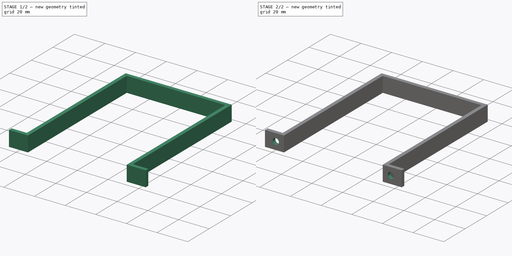
[diagram: build sequence overview — one tinted view per stage of 2, left to right]
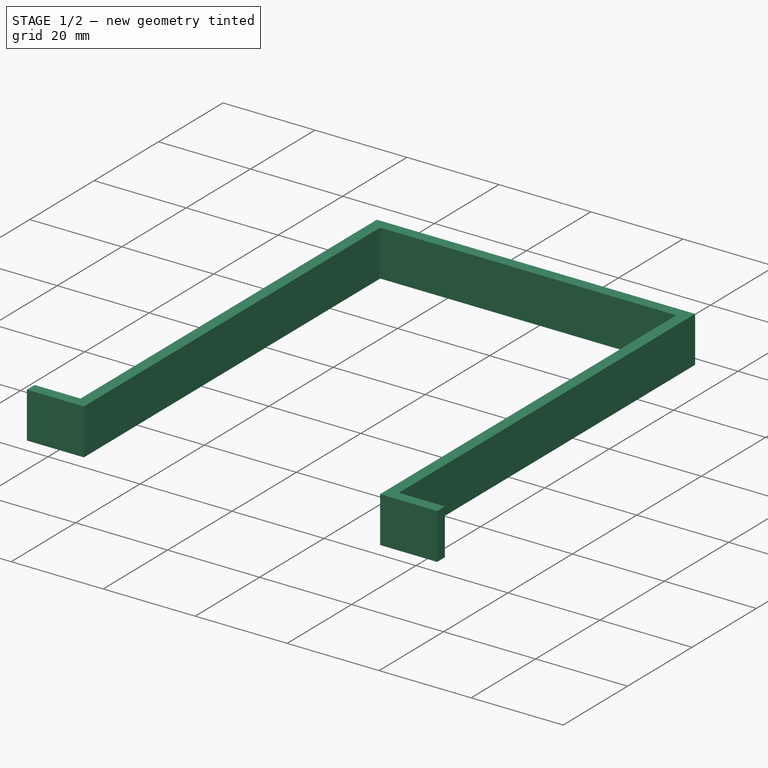
[diagram: stage 1 of 2 — iso view after this stage's code; geometry added in this stage tinted green]
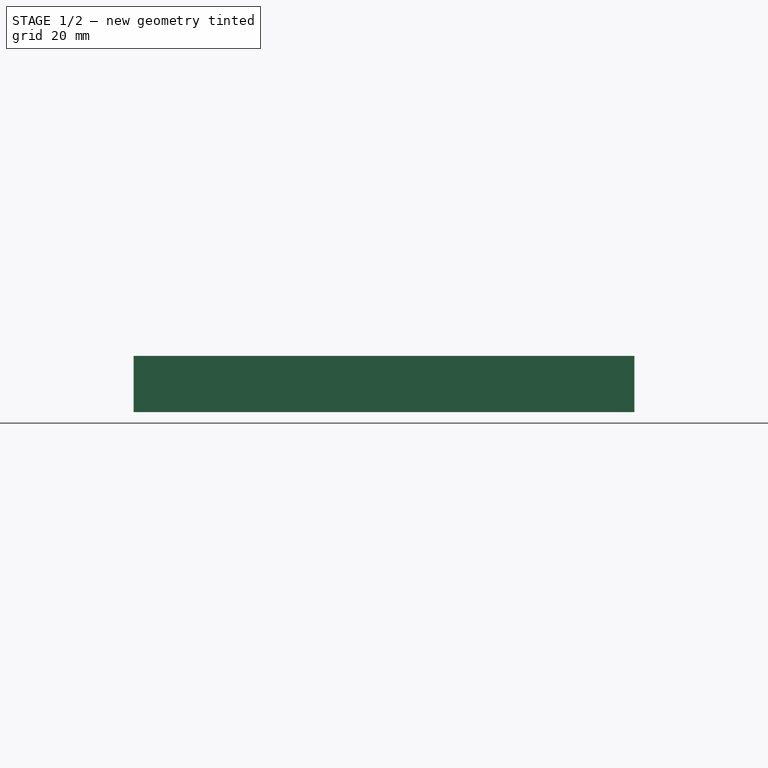
[diagram: stage 1 of 2 — front view after this stage's code; geometry added in this stage tinted green]
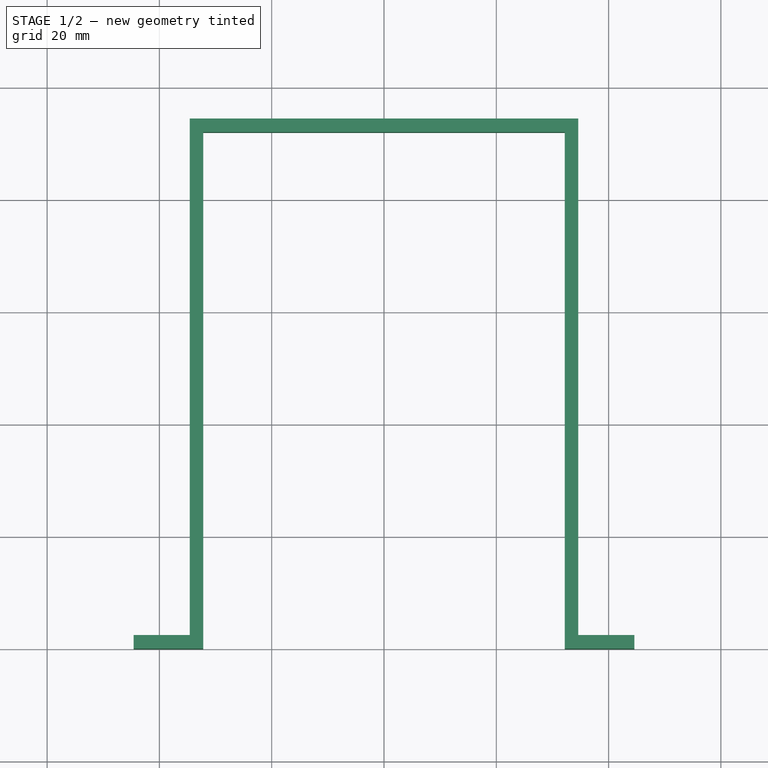
[diagram: stage 1 of 2 — top view after this stage's code; geometry added in this stage tinted green]
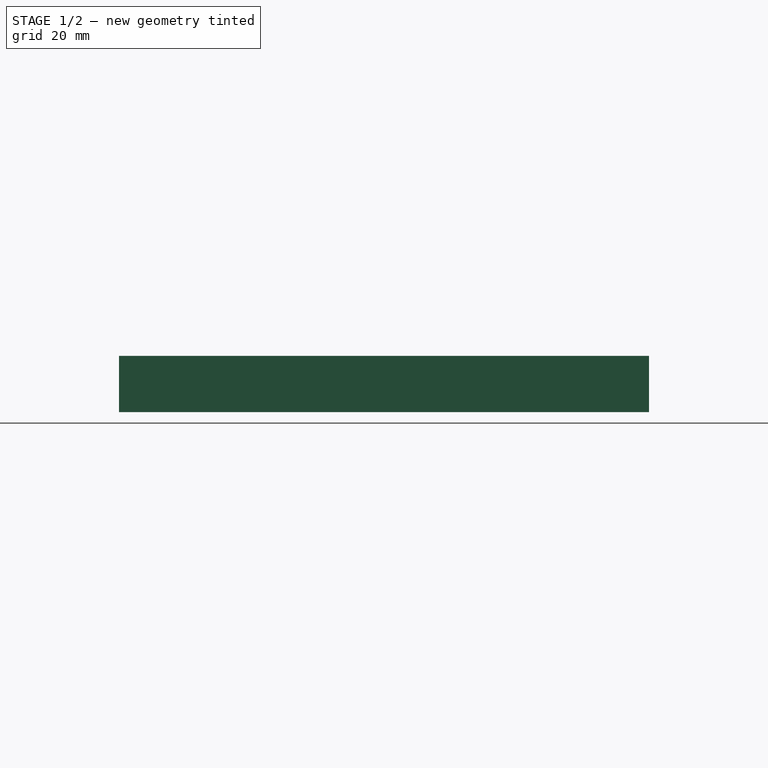
[diagram: stage 1 of 2 — right view after this stage's code; geometry added in this stage tinted green]
FCSTD DOCUMENT  (FreeCAD 0.22R38127 (Git))
Label: solar panel battery strap
License: All rights reserved
LicenseURL: http://en.wikipedia.org/wiki/All_rights_reserved
objects: Sketcher::SketchObject×2, PartDesign::Pad×1, PartDesign::Pocket×1, PartDesign::Body×1
note: 7 computed .brp shape members not serialized (recipe doc carries the construction recipe); baked Part::Feature solids carry a one-line shape summary decoded from their .brp

FEATURE [Sketcher::SketchObject] Sketch
  AttachmentSupport = -> [XY_Plane]
  FullyConstrained = true
  MapMode = 5
  sketch-geometry (12):
    g0: LineSegment StartX=34.6 StartY=94.4 StartZ=0 EndX=-34.6 EndY=94.4 EndZ=0
    g1: LineSegment StartX=-34.6 StartY=94.4 StartZ=0 EndX=-34.6 EndY=2.4 EndZ=0
    g2: LineSegment StartX=-34.6 StartY=2.4 StartZ=0 EndX=-44.6 EndY=2.4 EndZ=0
    g3: LineSegment StartX=-44.6 StartY=2.4 StartZ=0 EndX=-44.6 EndY=0 EndZ=0
    g4: LineSegment StartX=-44.6 StartY=0 StartZ=0 EndX=-32.2 EndY=0 EndZ=0
    g5: LineSegment StartX=-32.2 StartY=0 StartZ=0 EndX=-32.2 EndY=92 EndZ=0
    g6: LineSegment StartX=-32.2 StartY=92 StartZ=0 EndX=32.2 EndY=92 EndZ=0
    g7: LineSegment StartX=32.2 StartY=92 StartZ=0 EndX=32.2 EndY=0 EndZ=0
    g8: LineSegment StartX=32.2 StartY=0 StartZ=0 EndX=44.6 EndY=0 EndZ=0
    g9: LineSegment StartX=44.6 StartY=0 StartZ=0 EndX=44.6 EndY=2.4 EndZ=0
    g10: LineSegment StartX=44.6 StartY=2.4 StartZ=0 EndX=34.6 EndY=2.4 EndZ=0
    g11: LineSegment StartX=34.6 StartY=2.4 StartZ=0 EndX=34.6 EndY=94.4 EndZ=0
  constraints (30):
    c: Coincident(g0,g1)
    c: Coincident(g1,g2)
    c: Coincident(g2,g3)
    c: PointOnObject(g3,g-1)
    c: Coincident(g3,g4)
    c: PointOnObject(g4,g-1)
    c: Coincident(g4,g5)
    c: Coincident(g5,g6)
    c: Coincident(g6,g7)
    c: Coincident(g7,g8)
    c: Coincident(g8,g9)
    c: Coincident(g9,g10)
    c: Coincident(g10,g11)
    c: Coincident(g11,g0)
    c: Vertical(g1)
    c: Vertical(g5)
    c: Vertical(g3)
    c: Symmetric(g0,g0,g-2)
    c: Symmetric(g6,g5,g-2)
    c: Symmetric(g10,g1,g-2)
    c: Symmetric(g7,g4,g-2)
    c: Symmetric(g8,g3,g-2)
    c: Symmetric(g9,g2,g-2)
    c: Horizontal(g2)
    c: DistanceY(g5,g0) = 2.4
    c: DistanceX(g0,g5) = 2.4
    c: DistanceY(g3,g3) = 2.4
    c: DistanceX(g6,g6) = 64.4
    c: DistanceY(g5,g5) = 92
    c: DistanceX(g2,g2) = 10
FEATURE [PartDesign::Pad] Pad
  Direction = (0,0,1)
  Length = 10
  Length2 = 10
  Profile = -> Sketch
  ReferenceAxis = -> Sketch [N_Axis]
  Refine = true
  Suppressed = false
  Type = 0
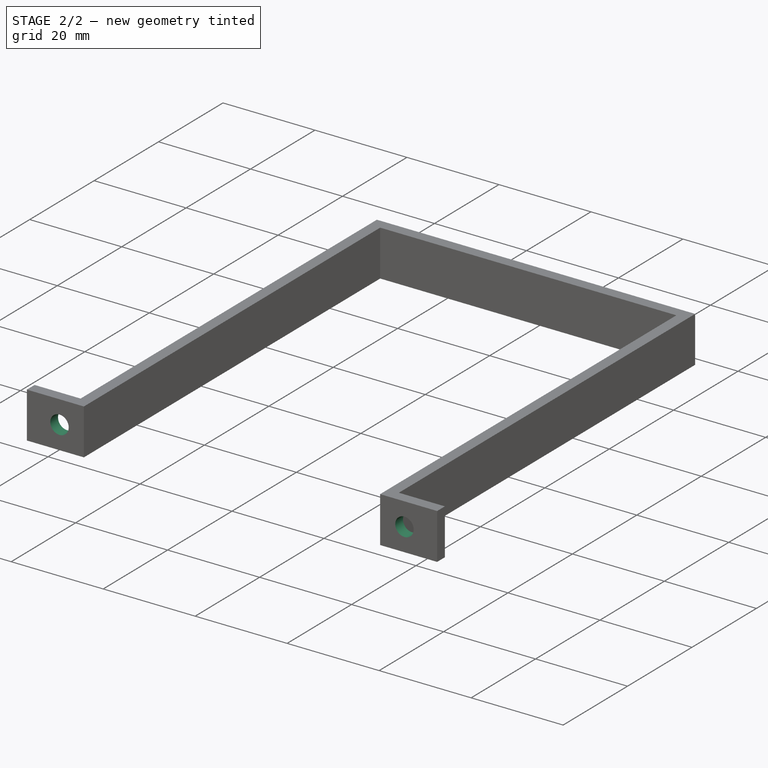
[diagram: stage 2 of 2 — iso view after this stage's code; geometry added in this stage tinted green]
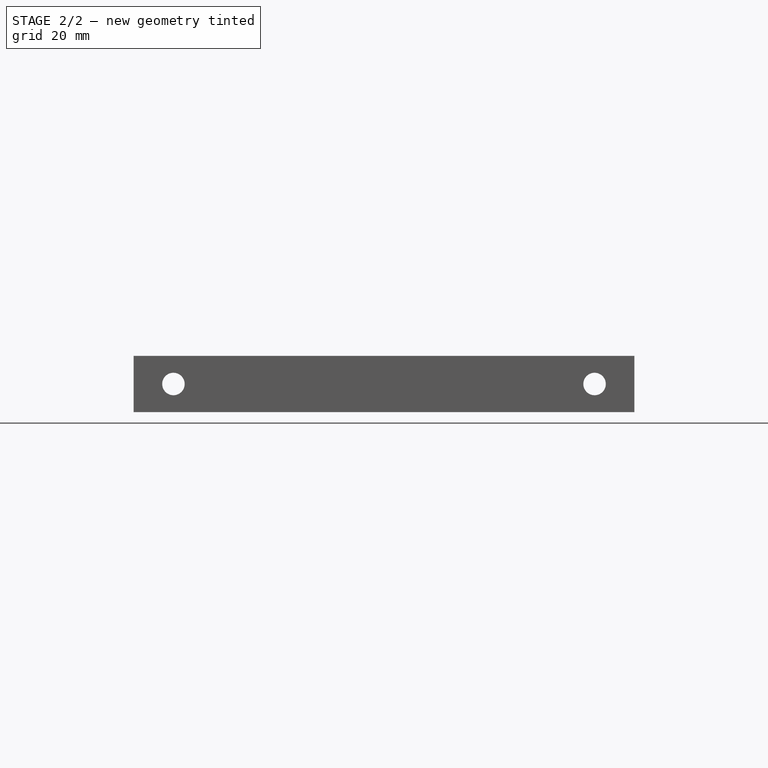
[diagram: stage 2 of 2 — front view after this stage's code; geometry added in this stage tinted green]
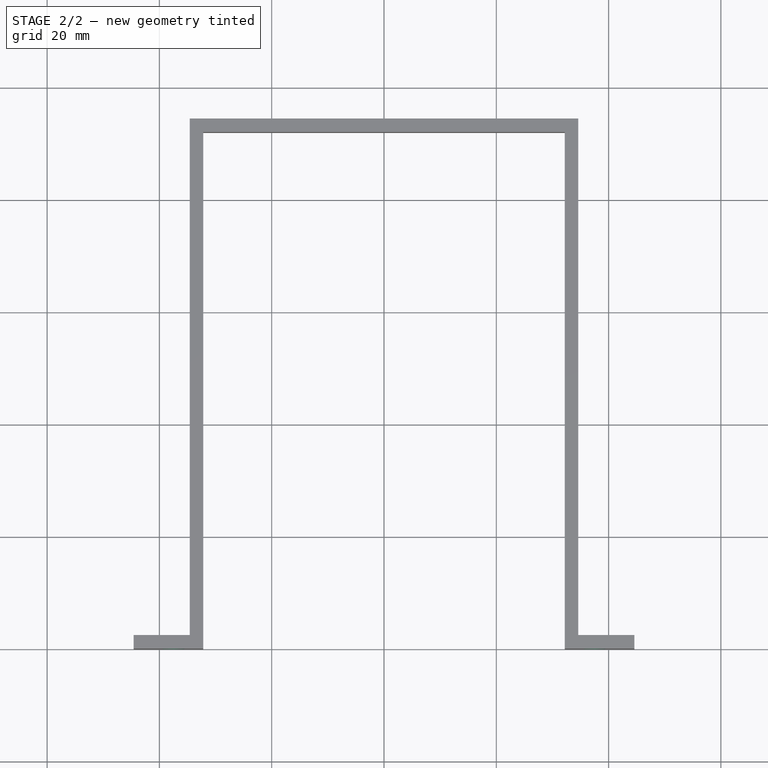
[diagram: stage 2 of 2 — top view after this stage's code; geometry added in this stage tinted green]
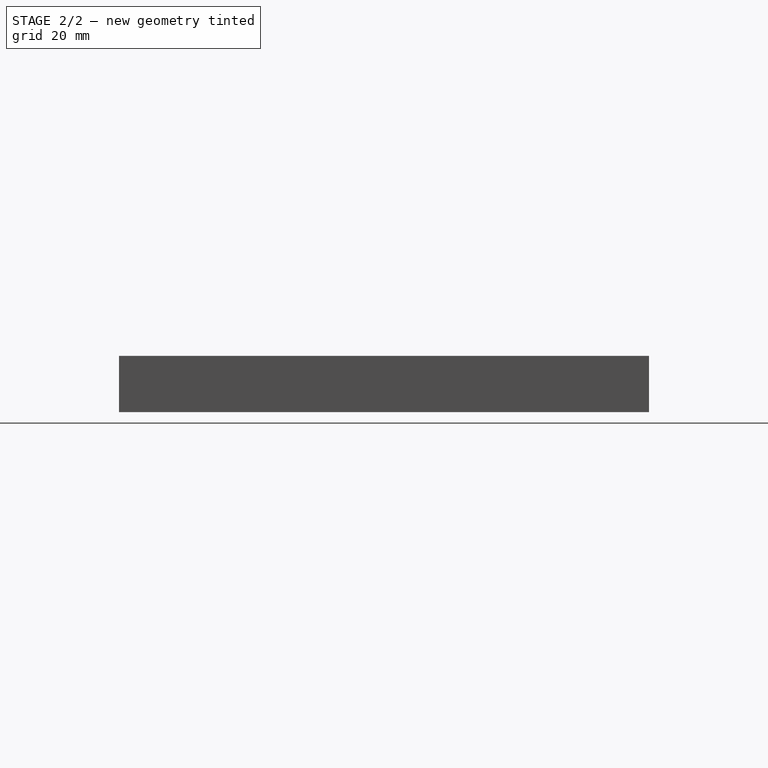
[diagram: stage 2 of 2 — right view after this stage's code; geometry added in this stage tinted green]
FEATURE [Sketcher::SketchObject] Sketch001
  AttachmentSupport = -> [XZ_Plane]
  FullyConstrained = true
  MapMode = 5
  Placement = pos=(0,0,0) rot=(1,0,0;1.5708rad)
  sketch-geometry (2):
    g0: Circle CenterX=-37.5 CenterY=5 CenterZ=0 NormalX=0 NormalY=0 NormalZ=1 AngleXU=0 Radius=2
    g1: Circle CenterX=37.5 CenterY=5 CenterZ=0 NormalX=0 NormalY=0 NormalZ=1 AngleXU=0 Radius=2
  constraints (5):
    c: Symmetric(g1,g0,g-2)
    c: DistanceY(g-1,g0) = 5
    c: Equal(g0,g1)
    c: Diameter(g0) = 4
    c: DistanceX(g0,g1) = 75
FEATURE [PartDesign::Pocket] Pocket
  BaseFeature = -> Pad
  Direction = (0,1,-2e-16)
  Length = 5
  Length2 = 5
  Profile = -> Sketch001
  ReferenceAxis = -> Sketch001 [N_Axis]
  Refine = true
  Suppressed = false
  Type = 0
FEATURE [PartDesign::Body] Body
  AllowCompound = false
  Group = -> [Sketch,Pad,Sketch001,Pocket]
  Origin = -> Origin
  Tip = -> Pocket
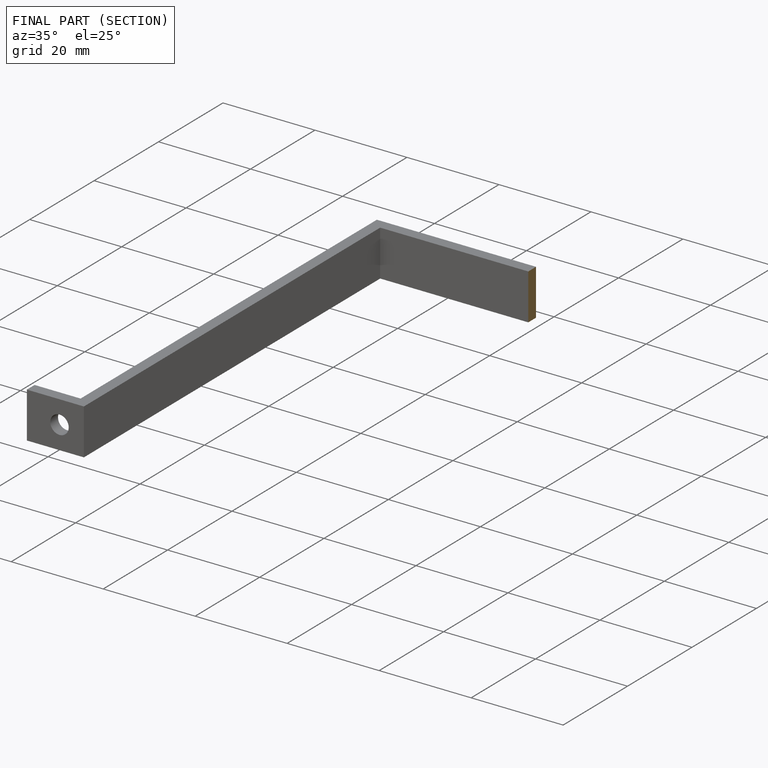
[diagram: finished part — half-section view (interior)]
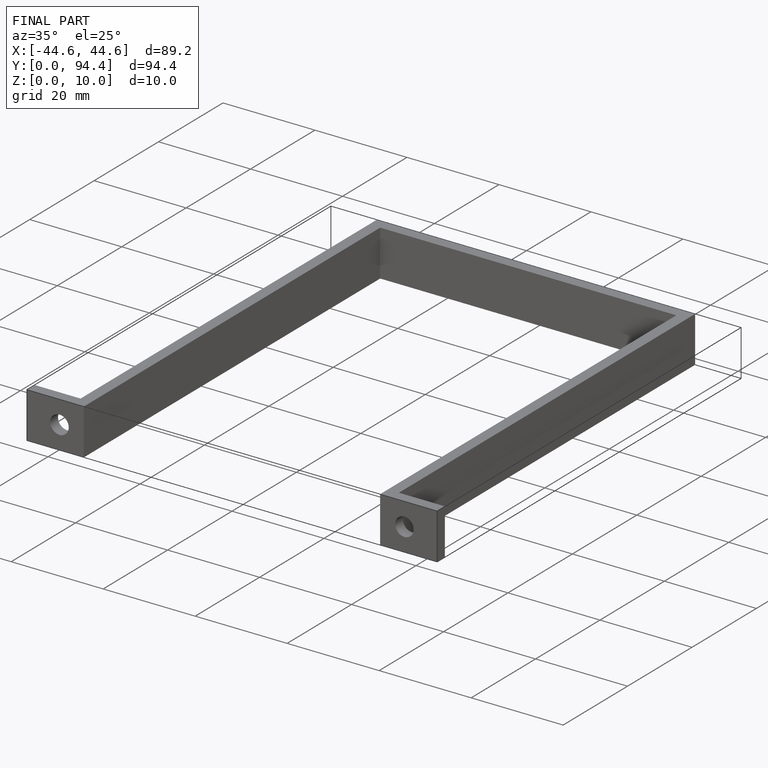
[diagram: finished part — iso view with bounding-box wireframe]
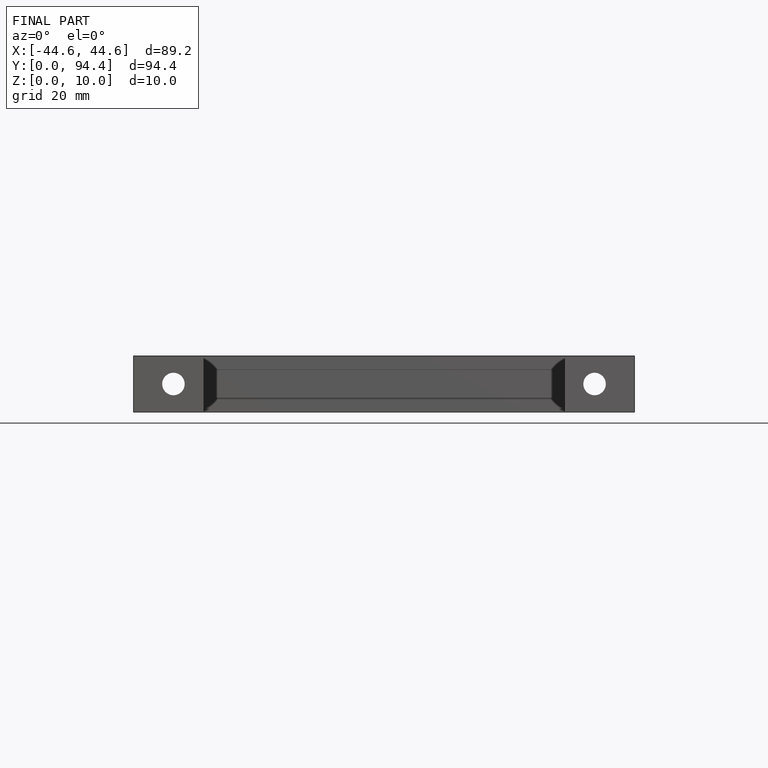
[diagram: finished part — front view with bounding-box wireframe]
